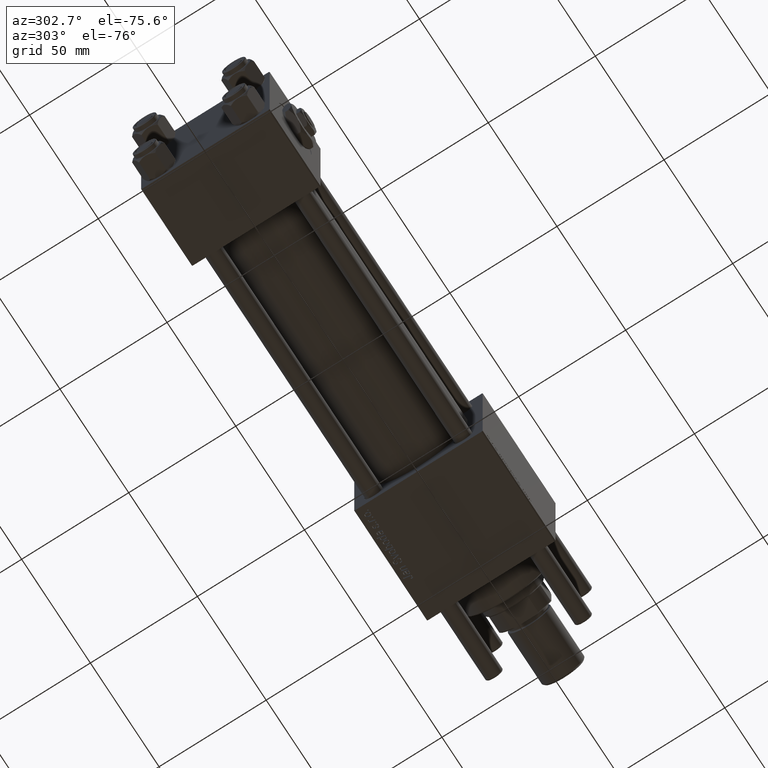
[diagram: clean part render]
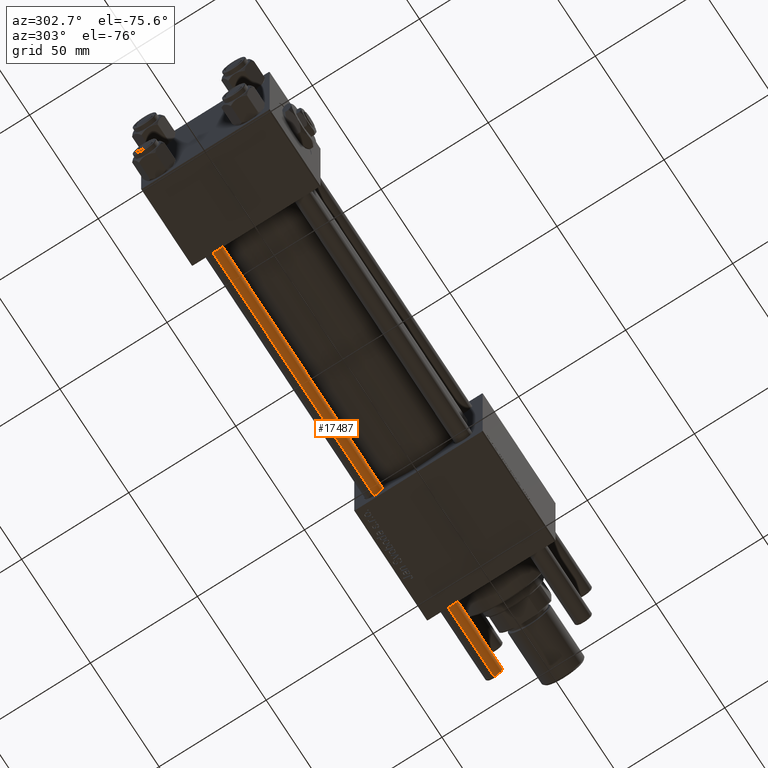
[diagram: same view with one face highlighted and labeled with its STEP entity id]
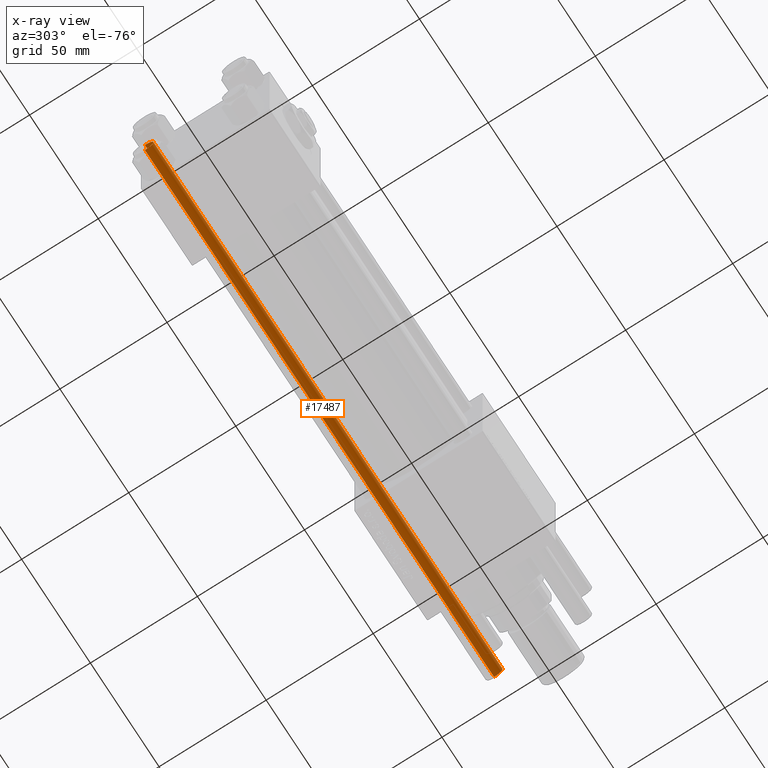
[diagram: x-ray of the same camera — body ghosted, the highlighted face saturated]
A machine part, auxiliary view. The second image highlights one B-rep face of the part: STEP entity #17487.
The next image is the same camera in x-ray: the body ghosted, the highlighted face saturated — about 0% of this face is hidden behind the body in this view.
In plain terms, the highlighted cylindrical surface (edge-blend (fillet) strip) has radius 4 mm, axis along (-1, -0, 0).
Its self-contained STEP definition (entity closure, byte-faithful):
#4920 = CARTESIAN_POINT ( 'NONE',  ( -4.000000000000000000, 0.000000000000000000, 254.4999999999999432 ) ) ;
#7645 = EDGE_CURVE ( 'NONE', #38721, #16402, #51244, .T. ) ;
#11868 = ORIENTED_EDGE ( 'NONE', *, *, #26679, .T. ) ;
#14396 = DIRECTION ( 'NONE',  ( 0.000000000000000000, 0.000000000000000000, -1.000000000000000000 ) ) ;
#15283 = CARTESIAN_POINT ( 'NONE',  ( 0.000000000000000000, 0.000000000000000000, 254.4999999999999432 ) ) ;
#16402 = VERTEX_POINT ( 'NONE', #4920 ) ;
#16618 = VECTOR ( 'NONE', #40689, 1000.000000000000000 ) ;
#17483 = DIRECTION ( 'NONE',  ( -0.000000000000000000, -0.000000000000000000, -1.000000000000000000 ) ) ;
#17487 = ADVANCED_FACE ( 'NONE', ( #19936 ), #42300, .T. ) ;
#18326 = CARTESIAN_POINT ( 'NONE',  ( 4.000000000000000000, 4.898587196589412829E-16, 255.0000000000000000 ) ) ;
#19123 = ORIENTED_EDGE ( 'NONE', *, *, #7645, .T. ) ;
#19936 = FACE_OUTER_BOUND ( 'NONE', #55704, .T. ) ;
#21608 = CIRCLE ( 'NONE', #31127, 4.000000000000000000 ) ;
#21978 = EDGE_CURVE ( 'NONE', #38721, #35973, #45459, .T. ) ;
#25520 = AXIS2_PLACEMENT_3D ( 'NONE', #15283, #14396, #33157 ) ;
#25546 = LINE ( 'NONE', #25849, #31974 ) ;
#25849 = CARTESIAN_POINT ( 'NONE',  ( -4.000000000000000000, 0.000000000000000000, 255.0000000000000000 ) ) ;
#26075 = VERTEX_POINT ( 'NONE', #48651 ) ;
#26679 = EDGE_CURVE ( 'NONE', #16402, #26075, #25546, .T. ) ;
#31127 = AXIS2_PLACEMENT_3D ( 'NONE', #41598, #45787, #55022 ) ;
#31974 = VECTOR ( 'NONE', #17483, 1000.000000000000000 ) ;
#33157 = DIRECTION ( 'NONE',  ( 1.000000000000000000, 0.000000000000000000, 0.000000000000000000 ) ) ;
#33627 = EDGE_CURVE ( 'NONE', #26075, #35973, #21608, .T. ) ;
#33636 = CARTESIAN_POINT ( 'NONE',  ( 0.000000000000000000, 0.000000000000000000, 255.0000000000000000 ) ) ;
#35973 = VERTEX_POINT ( 'NONE', #51323 ) ;
#36222 = CARTESIAN_POINT ( 'NONE',  ( 4.000000000000000000, 4.898587196589412829E-16, 254.4999999999999432 ) ) ;
#37309 = ORIENTED_EDGE ( 'NONE', *, *, #21978, .F. ) ;
#38721 = VERTEX_POINT ( 'NONE', #36222 ) ;
#40689 = DIRECTION ( 'NONE',  ( -0.000000000000000000, -0.000000000000000000, -1.000000000000000000 ) ) ;
#41598 = CARTESIAN_POINT ( 'NONE',  ( 0.000000000000000000, 0.000000000000000000, 0.5000000000000559552 ) ) ;
#42300 = CYLINDRICAL_SURFACE ( 'NONE', #45745, 4.000000000000000000 ) ;
#44960 = ORIENTED_EDGE ( 'NONE', *, *, #33627, .T. ) ;
#45459 = LINE ( 'NONE', #18326, #16618 ) ;
#45745 = AXIS2_PLACEMENT_3D ( 'NONE', #33636, #50940, #52119 ) ;
#45787 = DIRECTION ( 'NONE',  ( -0.000000000000000000, -0.000000000000000000, 1.000000000000000000 ) ) ;
#48651 = CARTESIAN_POINT ( 'NONE',  ( -4.000000000000000000, 0.000000000000000000, 0.5000000000000559552 ) ) ;
#50940 = DIRECTION ( 'NONE',  ( -0.000000000000000000, -0.000000000000000000, -1.000000000000000000 ) ) ;
#51244 = CIRCLE ( 'NONE', #25520, 4.000000000000000000 ) ;
#51323 = CARTESIAN_POINT ( 'NONE',  ( 4.000000000000000000, 4.898587196589412829E-16, 0.5000000000000559552 ) ) ;
#52119 = DIRECTION ( 'NONE',  ( -1.000000000000000000, 0.000000000000000000, 0.000000000000000000 ) ) ;
#55022 = DIRECTION ( 'NONE',  ( 1.000000000000000000, 0.000000000000000000, 0.000000000000000000 ) ) ;
#55704 = EDGE_LOOP ( 'NONE', ( #37309, #19123, #11868, #44960 ) ) ;